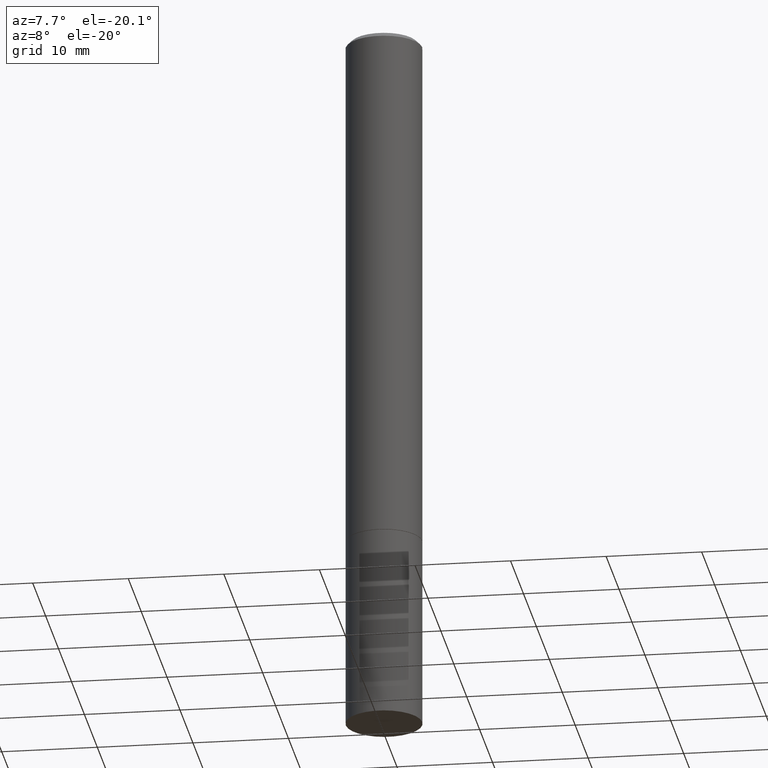
[diagram: clean part render]
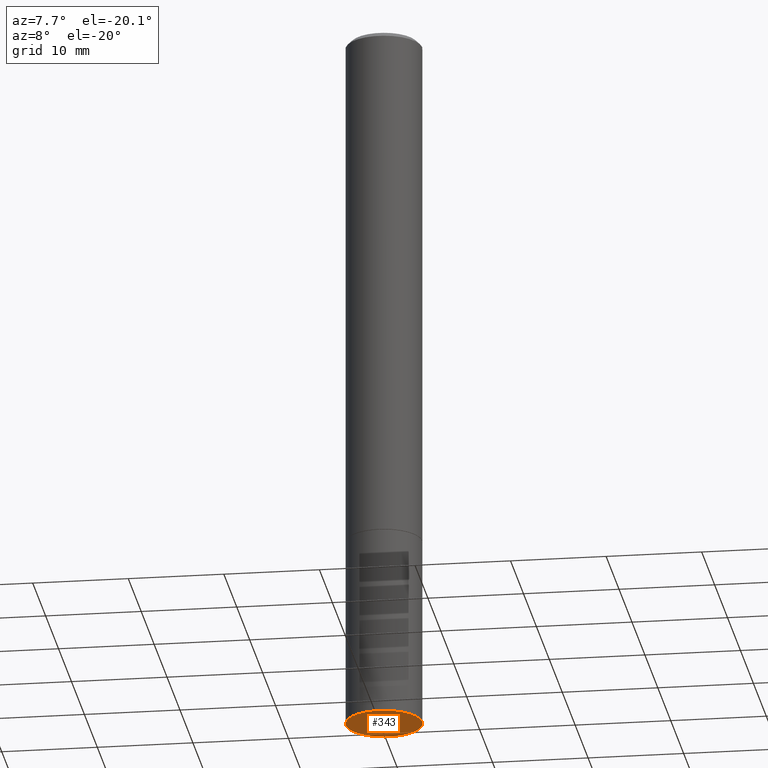
[diagram: same view with one face highlighted and labeled with its STEP entity id]
A machine part, auxiliary view. The second image highlights one B-rep face of the part: STEP entity #343.
In plain terms, the highlighted planar face has unit normal (0, -0, -1).
Its self-contained STEP definition (entity closure, byte-faithful):
#13 = ORIENTED_EDGE ( 'NONE', *, *, #25, .F. ) ;
#17 = CARTESIAN_POINT ( 'NONE',  ( 7.220980290903470182E-29, -1.030964609733603853E-14, -2.952799999999999869 ) ) ;
#20 = DIRECTION ( 'NONE',  ( 1.000000000000000000, -6.982962677686261977E-15, 0.000000000000000000 ) ) ;
#25 = EDGE_CURVE ( 'NONE', #241, #180, #301, .T. ) ;
#84 = CARTESIAN_POINT ( 'NONE',  ( 1.099816621735659069E-15, 0.1574999999999896760, -2.952800000000000313 ) ) ;
#106 = AXIS2_PLACEMENT_3D ( 'NONE', #201, #202, #289 ) ;
#148 = FACE_OUTER_BOUND ( 'NONE', #300, .T. ) ;
#170 = DIRECTION ( 'NONE',  ( -1.000000000000000000, 6.982962677686265922E-15, -4.876176775795935793E-29 ) ) ;
#180 = VERTEX_POINT ( 'NONE', #245 ) ;
#187 = AXIS2_PLACEMENT_3D ( 'NONE', #84, #231, #170 ) ;
#194 = DIRECTION ( 'NONE',  ( -2.445468806185136597E-29, 3.491481338843145583E-15, 1.000000000000000000 ) ) ;
#201 = CARTESIAN_POINT ( 'NONE',  ( 7.220980290903470182E-29, -1.030964609733603853E-14, -2.952799999999999869 ) ) ;
#202 = DIRECTION ( 'NONE',  ( -2.445468806185136597E-29, 3.491481338843145583E-15, 1.000000000000000000 ) ) ;
#219 = AXIS2_PLACEMENT_3D ( 'NONE', #17, #194, #20 ) ;
#224 = CARTESIAN_POINT ( 'NONE',  ( 0.1575000000000000011, -1.140946271907162522E-14, -2.952799999999999869 ) ) ;
#227 = EDGE_CURVE ( 'NONE', #180, #241, #251, .T. ) ;
#231 = DIRECTION ( 'NONE',  ( 2.438088387897960049E-29, -3.491481338843145188E-15, -1.000000000000000000 ) ) ;
#241 = VERTEX_POINT ( 'NONE', #224 ) ;
#245 = CARTESIAN_POINT ( 'NONE',  ( -0.1575000000000000011, -7.815945085411336161E-15, -2.952799999999999869 ) ) ;
#251 = CIRCLE ( 'NONE', #106, 0.1575000000000000011 ) ;
#267 = ORIENTED_EDGE ( 'NONE', *, *, #227, .F. ) ;
#289 = DIRECTION ( 'NONE',  ( 1.000000000000000000, -6.982962677686261977E-15, 0.000000000000000000 ) ) ;
#300 = EDGE_LOOP ( 'NONE', ( #13, #267 ) ) ;
#301 = CIRCLE ( 'NONE', #219, 0.1575000000000000011 ) ;
#343 = ADVANCED_FACE ( 'NONE', ( #148 ), #344, .T. ) ;
#344 = PLANE ( 'NONE',  #187 ) ;